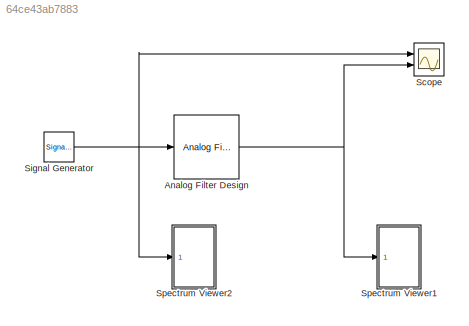
MODEL slx_64ce43ab7883
KIND model
CONFIG AbsTol = auto
CONFIG EnableMultiTasking = off
CONFIG FixedStep = 1e-7
CONFIG MaxStep = auto
CONFIG MinStep = auto
CONFIG RelTol = 1e-3
CONFIG SampleTimeConstraint = Unconstrained
CONFIG Solver = FixedStepAuto
CONFIG SolverName = FixedStepAuto
CONFIG StartTime = 0.0
CONFIG StopTime = 0.01
BLOCK [Reference] Analog Filter Design  REF=dsparch4/Analog
Filter Design
  Ports = [1, 1]
  SourceBlock = dsparch4/Analog\nFilter Design
  SourceProductBaseCode = DS
  SourceProductName = DSP System Toolbox
  SourceType = Analog Filter Design
BLOCK [Scope] Scope
  Floating = off
  NumInputPorts = 2
  Ports = [2]
  ScopeSpecificationString = Simulink.scopes.TimeScopeBlockCfg('CurrentConfiguration', extmgr.ConfigurationSet(extmgr.Configuration('Core','General UI',true),extmgr.Configuration('Core','Source UI',true),extmgr.Configuration('Sources','WiredSimulink',true),extmgr.Configuration('Visuals','Time Domain',true,'SerializedDisplays',{struct('MinYLimReal','-1.25','MaxYLimReal','1.25','YLabelReal','','MinYLimMag','0.00000','MaxYLimMag...<+2090ch>
BLOCK [SignalGenerator] Signal Generator
  Amplitude = 0.2
  Frequency = 1e5
  Ports = [0, 1]
  WaveForm = square
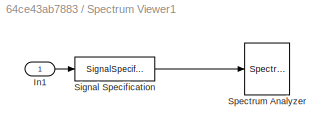
BLOCK [SubSystem] Spectrum Viewer1
  Ports = [1]
  RequestExecContextInheritance = off
BLOCK [Inport] Spectrum Viewer1/In1
  IconDisplay = Port number
BLOCK [SignalSpecification] Spectrum Viewer1/Signal Specification
  SampleTime = 1e-7
BLOCK [SpectrumAnalyzer] Spectrum Viewer1/Spectrum Analyzer
  Ports = [1]
  ScopeSpecificationString = spbscopes.SpectrumAnalyzerBlockCfg('CurrentConfiguration', extmgr.ConfigurationSet(extmgr.Configuration('Core','General UI',true),extmgr.Configuration('Core','Source UI',true),extmgr.Configuration('Sources','WiredSimulink',true),extmgr.Configuration('Sources','SimulinkEvent',false),extmgr.Configuration('Sources','Simulink',false),extmgr.Configuration('Sources','SPTool',false),extmgr.Configuration(...<+4401ch>
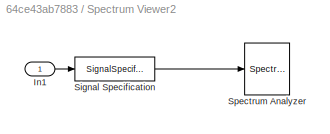
BLOCK [SubSystem] Spectrum Viewer2
  Ports = [1]
  RequestExecContextInheritance = off
BLOCK [Inport] Spectrum Viewer2/In1
  IconDisplay = Port number
BLOCK [SignalSpecification] Spectrum Viewer2/Signal Specification
  SampleTime = 1e-7
BLOCK [SpectrumAnalyzer] Spectrum Viewer2/Spectrum Analyzer
  Ports = [1]
  ScopeSpecificationString = spbscopes.SpectrumAnalyzerBlockCfg('CurrentConfiguration', extmgr.ConfigurationSet(extmgr.Configuration('Core','General UI',true),extmgr.Configuration('Core','Source UI',true),extmgr.Configuration('Sources','WiredSimulink',true),extmgr.Configuration('Sources','SimulinkEvent',false),extmgr.Configuration('Sources','Simulink',false),extmgr.Configuration('Sources','SPTool',false),extmgr.Configuration(...<+3925ch>
NET Analog Filter Design:1 -> Scope:2, Spectrum Viewer1:1
NET Signal Generator:1 -> Analog Filter Design:1, Scope:1, Spectrum Viewer2:1
LINE Spectrum Viewer1/In1:1 -> Spectrum Viewer1/Signal Specification:1
LINE Spectrum Viewer1/Signal Specification:1 -> Spectrum Viewer1/Spectrum Analyzer:1
LINE Spectrum Viewer2/In1:1 -> Spectrum Viewer2/Signal Specification:1
LINE Spectrum Viewer2/Signal Specification:1 -> Spectrum Viewer2/Spectrum Analyzer:1
note: NET lines group one-source signal fan-out (src -> all destinations, sorted); 1:1 wires keep LINE
